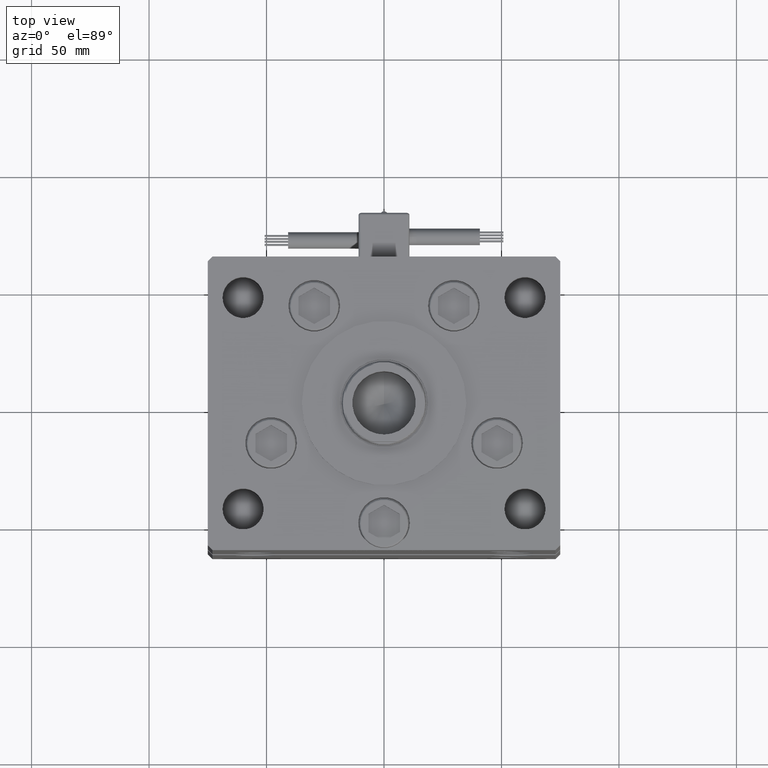
[diagram: clean part render]
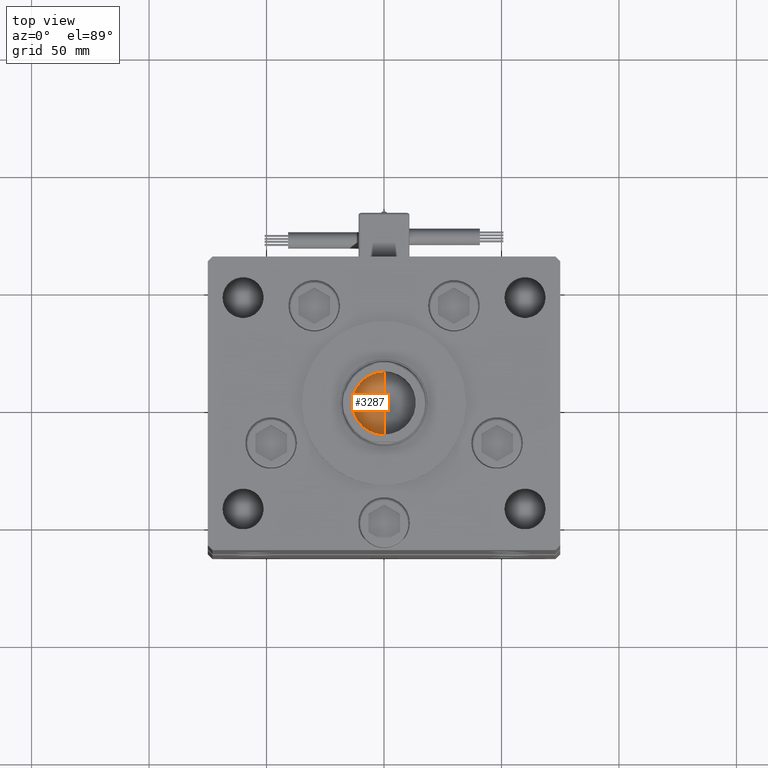
[diagram: same view with one face highlighted and labeled with its STEP entity id]
A machine part, top view. The second image highlights one B-rep face of the part: STEP entity #3287.
In plain terms, the highlighted conical surface has half-angle 59 deg.
Its self-contained STEP definition (entity closure, byte-faithful):
#481 = DIRECTION ( 'NONE',  ( 0.000000000000000000, 0.000000000000000000, -1.000000000000000000 ) ) ;
#3287 = ADVANCED_FACE ( 'NONE', ( #47029 ), #41011, .F. ) ;
#3365 = VECTOR ( 'NONE', #46350, 1000.000000000000000 ) ;
#3535 = CARTESIAN_POINT ( 'NONE',  ( -30.50161835687206846, -7.088805540759547745E-15, 0.000000000000000000 ) ) ;
#6624 = ORIENTED_EDGE ( 'NONE', *, *, #14808, .T. ) ;
#7354 = EDGE_LOOP ( 'NONE', ( #35939, #15720, #6624 ) ) ;
#14808 = EDGE_CURVE ( 'NONE', #48959, #49375, #49810, .T. ) ;
#15720 = ORIENTED_EDGE ( 'NONE', *, *, #49221, .T. ) ;
#17714 = VECTOR ( 'NONE', #49023, 1000.000000000000000 ) ;
#24938 = VERTEX_POINT ( 'NONE', #3535 ) ;
#25889 = DIRECTION ( 'NONE',  ( 1.000000000000000000, -0.000000000000000000, -0.000000000000000000 ) ) ;
#29991 = DIRECTION ( 'NONE',  ( 1.000000000000000000, -0.000000000000000000, -0.000000000000000000 ) ) ;
#30884 = AXIS2_PLACEMENT_3D ( 'NONE', #42945, #29991, #34500 ) ;
#32573 = LINE ( 'NONE', #54529, #3365 ) ;
#34500 = DIRECTION ( 'NONE',  ( 0.000000000000000000, 0.000000000000000000, -1.000000000000000000 ) ) ;
#35939 = ORIENTED_EDGE ( 'NONE', *, *, #51605, .F. ) ;
#38966 = CARTESIAN_POINT ( 'NONE',  ( -22.39000000000000057, 1.653273178848926275E-15, 13.49999999999999467 ) ) ;
#41011 = CONICAL_SURFACE ( 'NONE', #45510, 13.49999999999999467, 1.029744258676653867 ) ;
#41269 = CARTESIAN_POINT ( 'NONE',  ( -22.39000000000000057, 0.000000000000000000, -13.49999999999999467 ) ) ;
#42945 = CARTESIAN_POINT ( 'NONE',  ( -22.39000000000000057, 0.000000000000000000, 0.000000000000000000 ) ) ;
#43345 = CARTESIAN_POINT ( 'NONE',  ( -22.39000000000000057, 0.000000000000000000, 0.000000000000000000 ) ) ;
#44505 = LINE ( 'NONE', #45071, #17714 ) ;
#45071 = CARTESIAN_POINT ( 'NONE',  ( -22.39000000000000057, 1.653273178848926275E-15, 13.49999999999999467 ) ) ;
#45510 = AXIS2_PLACEMENT_3D ( 'NONE', #43345, #25889, #481 ) ;
#46350 = DIRECTION ( 'NONE',  ( 0.5150380749100547106, 0.000000000000000000, -0.8571673007021120005 ) ) ;
#47029 = FACE_OUTER_BOUND ( 'NONE', #7354, .T. ) ;
#48959 = VERTEX_POINT ( 'NONE', #38966 ) ;
#49023 = DIRECTION ( 'NONE',  ( 0.5150380749100547106, 1.049727191138618326E-16, 0.8571673007021120005 ) ) ;
#49221 = EDGE_CURVE ( 'NONE', #24938, #48959, #44505, .T. ) ;
#49375 = VERTEX_POINT ( 'NONE', #41269 ) ;
#49810 = CIRCLE ( 'NONE', #30884, 13.49999999999999467 ) ;
#51605 = EDGE_CURVE ( 'NONE', #24938, #49375, #32573, .T. ) ;
#54529 = CARTESIAN_POINT ( 'NONE',  ( -22.39000000000000057, 0.000000000000000000, -13.49999999999999467 ) ) ;